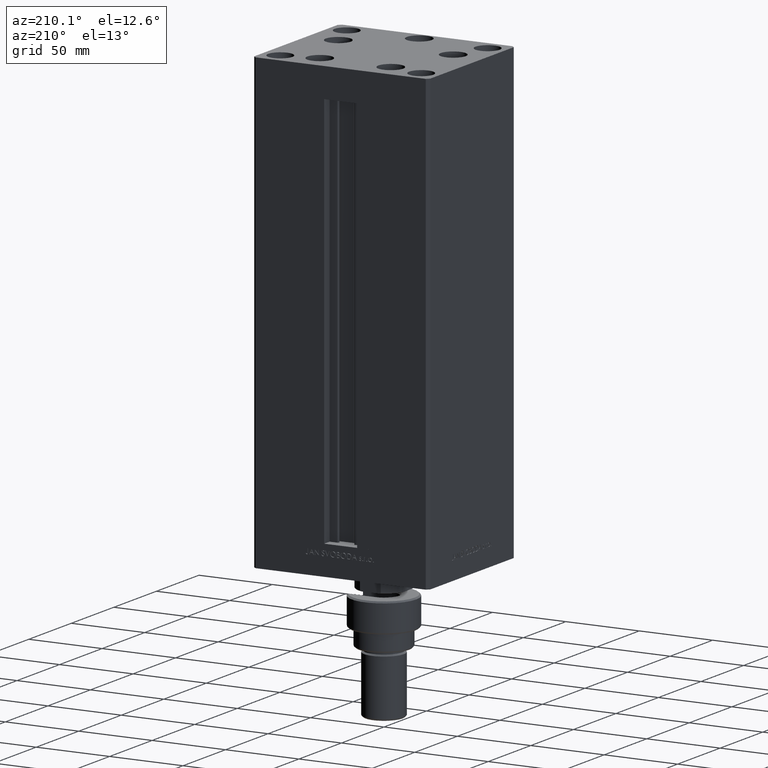
[diagram: clean part render]
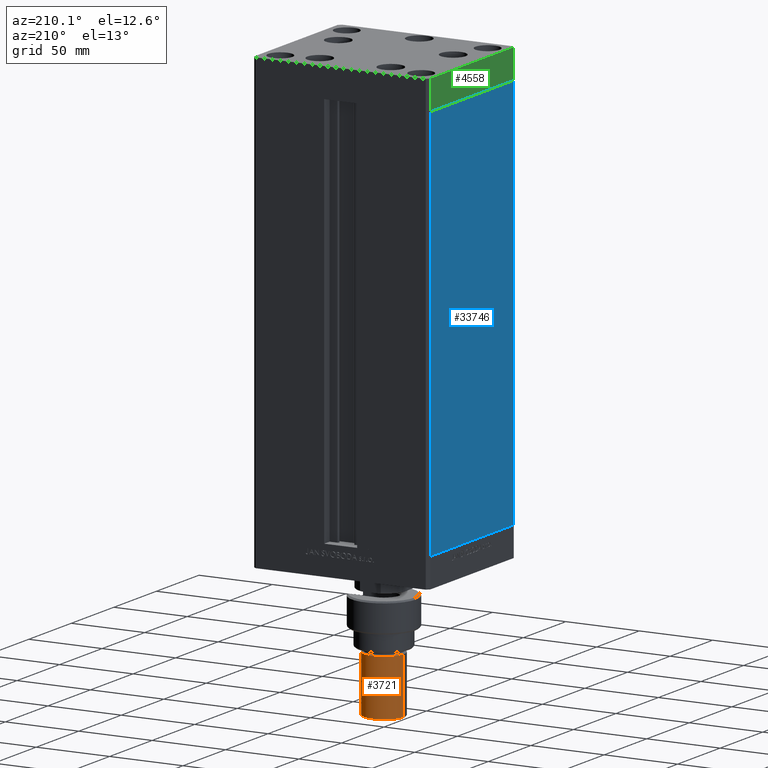
[diagram: same view with three faces highlighted in distinct colors, each labeled with its STEP entity id]
A machine part, auxiliary view with three faces highlighted in distinct colors.
Their STEP definitions:

[orange] entity #3721 — the highlighted cylindrical surface (edge-blend (fillet) strip) has radius 13.5 mm, axis along (0, -0, 1).
#97 = CARTESIAN_POINT ( 'NONE',  ( 13.50000000000000000, 1.653273178848926867E-15, 34.99999999999999289 ) ) ;
#642 = CIRCLE ( 'NONE', #25793, 13.50000000000000000 ) ;
#3270 = DIRECTION ( 'NONE',  ( -0.000000000000000000, -0.000000000000000000, -1.000000000000000000 ) ) ;
#3721 = ADVANCED_FACE ( 'NONE', ( #21304 ), #34678, .T. ) ;
#4036 = VERTEX_POINT ( 'NONE', #39440 ) ;
#7391 = AXIS2_PLACEMENT_3D ( 'NONE', #32996, #13915, #17724 ) ;
#7417 = EDGE_CURVE ( 'NONE', #15741, #4036, #642, .T. ) ;
#7996 = LINE ( 'NONE', #35433, #41040 ) ;
#9792 = ORIENTED_EDGE ( 'NONE', *, *, #37120, .T. ) ;
#10410 = CIRCLE ( 'NONE', #47785, 13.50000000000000000 ) ;
#11741 = EDGE_CURVE ( 'NONE', #35949, #4036, #48824, .T. ) ;
#13915 = DIRECTION ( 'NONE',  ( -0.000000000000000000, -0.000000000000000000, -1.000000000000000000 ) ) ;
#13964 = CARTESIAN_POINT ( 'NONE',  ( -13.50000000000000000, 0.000000000000000000, 74.00000000000001421 ) ) ;
#14026 = ORIENTED_EDGE ( 'NONE', *, *, #32670, .T. ) ;
#15741 = VERTEX_POINT ( 'NONE', #97 ) ;
#17500 = CARTESIAN_POINT ( 'NONE',  ( 0.000000000000000000, 0.000000000000000000, 73.00000000000001421 ) ) ;
#17724 = DIRECTION ( 'NONE',  ( -1.000000000000000000, 0.000000000000000000, 0.000000000000000000 ) ) ;
#21208 = CARTESIAN_POINT ( 'NONE',  ( 0.000000000000000000, 0.000000000000000000, 34.99999999999999289 ) ) ;
#21304 = FACE_OUTER_BOUND ( 'NONE', #49553, .T. ) ;
#21606 = CARTESIAN_POINT ( 'NONE',  ( -13.50000000000000000, 0.000000000000000000, 73.00000000000001421 ) ) ;
#22050 = DIRECTION ( 'NONE',  ( 0.000000000000000000, 0.000000000000000000, -1.000000000000000000 ) ) ;
#25793 = AXIS2_PLACEMENT_3D ( 'NONE', #21208, #40040, #28323 ) ;
#28323 = DIRECTION ( 'NONE',  ( 1.000000000000000000, 0.000000000000000000, 0.000000000000000000 ) ) ;
#30005 = VECTOR ( 'NONE', #3270, 1000.000000000000000 ) ;
#30435 = DIRECTION ( 'NONE',  ( 1.000000000000000000, 0.000000000000000000, 0.000000000000000000 ) ) ;
#31812 = VERTEX_POINT ( 'NONE', #43782 ) ;
#32670 = EDGE_CURVE ( 'NONE', #31812, #15741, #7996, .T. ) ;
#32996 = CARTESIAN_POINT ( 'NONE',  ( 0.000000000000000000, 0.000000000000000000, 74.00000000000001421 ) ) ;
#34678 = CYLINDRICAL_SURFACE ( 'NONE', #7391, 13.50000000000000000 ) ;
#35168 = ORIENTED_EDGE ( 'NONE', *, *, #7417, .T. ) ;
#35433 = CARTESIAN_POINT ( 'NONE',  ( 13.50000000000000000, 1.653273178848926867E-15, 74.00000000000001421 ) ) ;
#35949 = VERTEX_POINT ( 'NONE', #21606 ) ;
#37120 = EDGE_CURVE ( 'NONE', #35949, #31812, #10410, .T. ) ;
#39440 = CARTESIAN_POINT ( 'NONE',  ( -13.50000000000000000, 0.000000000000000000, 34.99999999999999289 ) ) ;
#40040 = DIRECTION ( 'NONE',  ( -0.000000000000000000, -0.000000000000000000, 1.000000000000000000 ) ) ;
#41040 = VECTOR ( 'NONE', #50235, 1000.000000000000000 ) ;
#43782 = CARTESIAN_POINT ( 'NONE',  ( 13.50000000000000000, 1.653273178848926867E-15, 73.00000000000001421 ) ) ;
#47785 = AXIS2_PLACEMENT_3D ( 'NONE', #17500, #22050, #30435 ) ;
#48824 = LINE ( 'NONE', #13964, #30005 ) ;
#49553 = EDGE_LOOP ( 'NONE', ( #9792, #14026, #35168, #49980 ) ) ;
#49980 = ORIENTED_EDGE ( 'NONE', *, *, #11741, .F. ) ;
#50235 = DIRECTION ( 'NONE',  ( -0.000000000000000000, -0.000000000000000000, -1.000000000000000000 ) ) ;

[blue] entity #33746 — the highlighted planar face has unit normal (1, 0, 0).
#558 = ORIENTED_EDGE ( 'NONE', *, *, #2395, .T. ) ;
#1880 = FACE_OUTER_BOUND ( 'NONE', #23435, .T. ) ;
#2395 = EDGE_CURVE ( 'NONE', #14191, #4181, #17589, .T. ) ;
#2944 = EDGE_CURVE ( 'NONE', #14191, #19655, #30602, .T. ) ;
#3120 = DIRECTION ( 'NONE',  ( 1.000000000000000000, 2.832201593431521726E-16, -0.000000000000000000 ) ) ;
#3281 = VECTOR ( 'NONE', #37479, 1000.000000000000000 ) ;
#4181 = VERTEX_POINT ( 'NONE', #44010 ) ;
#5005 = LINE ( 'NONE', #20512, #10450 ) ;
#6719 = CARTESIAN_POINT ( 'NONE',  ( -60.00000000000001421, 49.00000000000000000, 268.5000000000000000 ) ) ;
#7181 = CARTESIAN_POINT ( 'NONE',  ( -59.99999999999998579, -49.00000000000000000, 0.000000000000000000 ) ) ;
#7588 = ORIENTED_EDGE ( 'NONE', *, *, #34117, .T. ) ;
#9626 = AXIS2_PLACEMENT_3D ( 'NONE', #22203, #3120, #18883 ) ;
#9720 = EDGE_CURVE ( 'NONE', #19655, #28266, #20593, .T. ) ;
#10450 = VECTOR ( 'NONE', #16703, 1000.000000000000000 ) ;
#13774 = CARTESIAN_POINT ( 'NONE',  ( -60.00000000000001421, 49.00000000000000000, 268.5000000000000000 ) ) ;
#14191 = VERTEX_POINT ( 'NONE', #17225 ) ;
#16703 = DIRECTION ( 'NONE',  ( 2.832201593431521726E-16, -1.000000000000000000, 0.000000000000000000 ) ) ;
#17225 = CARTESIAN_POINT ( 'NONE',  ( -60.00000000000001421, 49.00000000000000000, 268.5000000000000000 ) ) ;
#17589 = LINE ( 'NONE', #13774, #22781 ) ;
#18883 = DIRECTION ( 'NONE',  ( -2.832201593431521726E-16, 1.000000000000000000, 0.000000000000000000 ) ) ;
#19655 = VERTEX_POINT ( 'NONE', #46761 ) ;
#20512 = CARTESIAN_POINT ( 'NONE',  ( -60.00000000000001421, 49.00000000000000000, 0.000000000000000000 ) ) ;
#20593 = LINE ( 'NONE', #32047, #44573 ) ;
#22203 = CARTESIAN_POINT ( 'NONE',  ( -60.00000000000001421, 49.00000000000000000, 268.5000000000000000 ) ) ;
#22781 = VECTOR ( 'NONE', #26221, 1000.000000000000000 ) ;
#23435 = EDGE_LOOP ( 'NONE', ( #7588, #39501, #48705, #558 ) ) ;
#26221 = DIRECTION ( 'NONE',  ( -0.000000000000000000, -0.000000000000000000, -1.000000000000000000 ) ) ;
#28266 = VERTEX_POINT ( 'NONE', #7181 ) ;
#30602 = LINE ( 'NONE', #6719, #3281 ) ;
#32047 = CARTESIAN_POINT ( 'NONE',  ( -59.99999999999998579, -49.00000000000000000, 268.5000000000000000 ) ) ;
#33746 = ADVANCED_FACE ( 'NONE', ( #1880 ), #49182, .F. ) ;
#34117 = EDGE_CURVE ( 'NONE', #4181, #28266, #5005, .T. ) ;
#36108 = DIRECTION ( 'NONE',  ( -0.000000000000000000, -0.000000000000000000, -1.000000000000000000 ) ) ;
#37479 = DIRECTION ( 'NONE',  ( 2.832201593431521726E-16, -1.000000000000000000, 0.000000000000000000 ) ) ;
#39501 = ORIENTED_EDGE ( 'NONE', *, *, #9720, .F. ) ;
#44010 = CARTESIAN_POINT ( 'NONE',  ( -60.00000000000001421, 49.00000000000000000, 0.000000000000000000 ) ) ;
#44573 = VECTOR ( 'NONE', #36108, 1000.000000000000000 ) ;
#46761 = CARTESIAN_POINT ( 'NONE',  ( -59.99999999999998579, -49.00000000000000000, 268.5000000000000000 ) ) ;
#48705 = ORIENTED_EDGE ( 'NONE', *, *, #2944, .F. ) ;
#49182 = PLANE ( 'NONE',  #9626 ) ;

[green] entity #4558 — the highlighted planar face has unit normal (-1, 0, 0).
#1149 = CARTESIAN_POINT ( 'NONE',  ( -60.00000000000000000, -49.00000000000000000, -20.00000000000000000 ) ) ;
#1471 = DIRECTION ( 'NONE',  ( -1.000000000000000000, 0.000000000000000000, 0.000000000000000000 ) ) ;
#3897 = CARTESIAN_POINT ( 'NONE',  ( -60.00000000000000000, -49.00000000000000000, -20.00000000000000000 ) ) ;
#4558 = ADVANCED_FACE ( 'NONE', ( #24106 ), #31998, .T. ) ;
#5527 = ORIENTED_EDGE ( 'NONE', *, *, #11728, .F. ) ;
#8571 = VERTEX_POINT ( 'NONE', #36157 ) ;
#8853 = CARTESIAN_POINT ( 'NONE',  ( -60.00000000000000000, 48.99999999999995737, -20.00000000000000000 ) ) ;
#10125 = CARTESIAN_POINT ( 'NONE',  ( -60.00000000000000000, 48.99999999999995737, -20.00000000000000000 ) ) ;
#11728 = EDGE_CURVE ( 'NONE', #30292, #36291, #18023, .T. ) ;
#12338 = LINE ( 'NONE', #1149, #37411 ) ;
#13789 = VECTOR ( 'NONE', #33281, 1000.000000000000000 ) ;
#14202 = EDGE_CURVE ( 'NONE', #36291, #8571, #25102, .T. ) ;
#14343 = EDGE_CURVE ( 'NONE', #48385, #8571, #12338, .T. ) ;
#18023 = LINE ( 'NONE', #30473, #13789 ) ;
#24106 = FACE_OUTER_BOUND ( 'NONE', #28118, .T. ) ;
#25102 = LINE ( 'NONE', #49014, #34146 ) ;
#27855 = DIRECTION ( 'NONE',  ( 0.000000000000000000, 0.000000000000000000, 1.000000000000000000 ) ) ;
#28118 = EDGE_LOOP ( 'NONE', ( #35524, #5527, #49560, #49421 ) ) ;
#30292 = VERTEX_POINT ( 'NONE', #10125 ) ;
#30473 = CARTESIAN_POINT ( 'NONE',  ( -60.00000000000000000, 48.99999999999995737, -20.00000000000000000 ) ) ;
#31998 = PLANE ( 'NONE',  #48850 ) ;
#33281 = DIRECTION ( 'NONE',  ( 0.000000000000000000, 0.000000000000000000, 1.000000000000000000 ) ) ;
#34146 = VECTOR ( 'NONE', #44932, 1000.000000000000000 ) ;
#35524 = ORIENTED_EDGE ( 'NONE', *, *, #14202, .F. ) ;
#36157 = CARTESIAN_POINT ( 'NONE',  ( -60.00000000000000000, -49.00000000000000000, 0.000000000000000000 ) ) ;
#36291 = VERTEX_POINT ( 'NONE', #38744 ) ;
#37411 = VECTOR ( 'NONE', #27855, 1000.000000000000000 ) ;
#38744 = CARTESIAN_POINT ( 'NONE',  ( -60.00000000000000000, 48.99999999999995737, 0.000000000000000000 ) ) ;
#40535 = LINE ( 'NONE', #48438, #48156 ) ;
#43454 = DIRECTION ( 'NONE',  ( 0.000000000000000000, 0.000000000000000000, 1.000000000000000000 ) ) ;
#44932 = DIRECTION ( 'NONE',  ( 0.000000000000000000, -1.000000000000000000, 0.000000000000000000 ) ) ;
#47253 = EDGE_CURVE ( 'NONE', #30292, #48385, #40535, .T. ) ;
#47672 = DIRECTION ( 'NONE',  ( 0.000000000000000000, -1.000000000000000000, 0.000000000000000000 ) ) ;
#48156 = VECTOR ( 'NONE', #47672, 1000.000000000000000 ) ;
#48385 = VERTEX_POINT ( 'NONE', #3897 ) ;
#48438 = CARTESIAN_POINT ( 'NONE',  ( -60.00000000000000000, 48.99999999999995737, -20.00000000000000000 ) ) ;
#48850 = AXIS2_PLACEMENT_3D ( 'NONE', #8853, #1471, #43454 ) ;
#49014 = CARTESIAN_POINT ( 'NONE',  ( -60.00000000000000000, 48.99999999999995737, 0.000000000000000000 ) ) ;
#49421 = ORIENTED_EDGE ( 'NONE', *, *, #14343, .T. ) ;
#49560 = ORIENTED_EDGE ( 'NONE', *, *, #47253, .T. ) ;